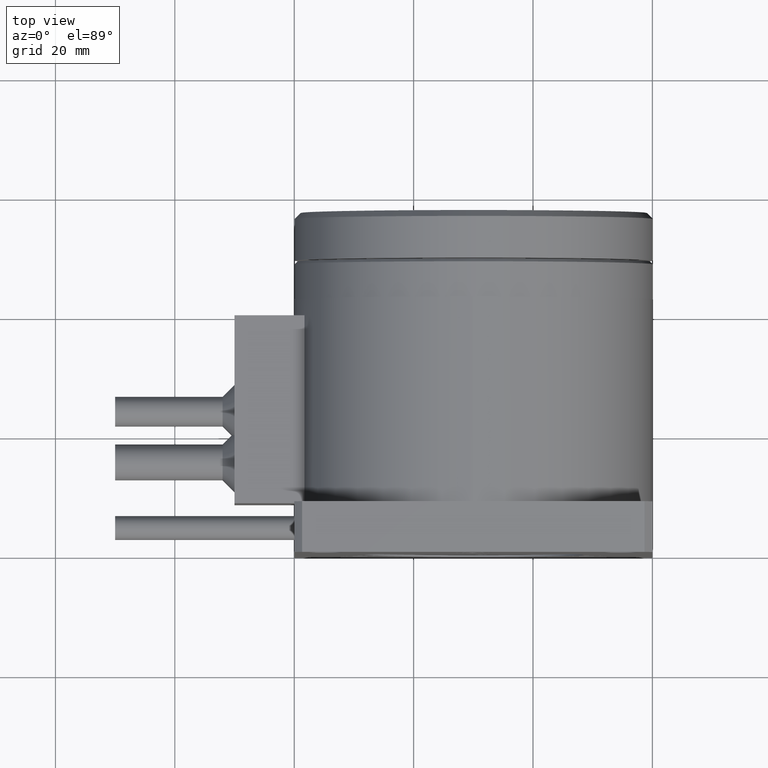
[diagram: clean part render]
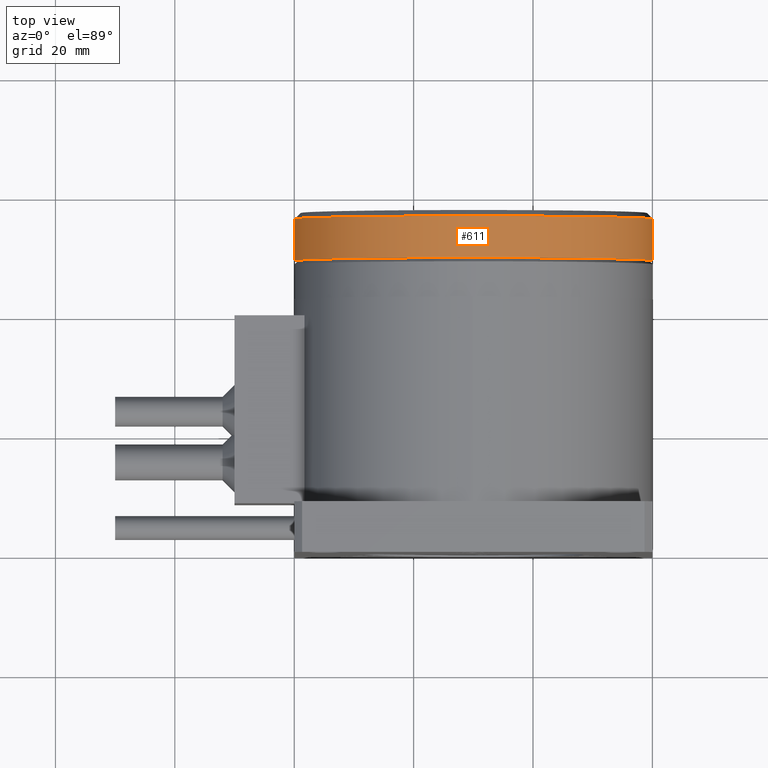
[diagram: same view with one face highlighted and labeled with its STEP entity id]
A machine part, top view. The second image highlights one B-rep face of the part: STEP entity #611.
In plain terms, the highlighted cylindrical surface (partial cylindrical patch) has radius 30 mm, axis along (0, -1, -0).
Its self-contained STEP definition (entity closure, byte-faithful):
#291 = ORIENTED_EDGE ( 'NONE', *, *, #1512, .T. ) ;
#496 = DIRECTION ( 'NONE',  ( -2.775557561562891800E-016, 1.000000000000000000, 2.773339119917620200E-032 ) ) ;
#611 = ADVANCED_FACE ( 'NONE', ( #7695 ), #9437, .T. ) ;
#968 = LINE ( 'NONE', #8223, #6198 ) ;
#1023 = CARTESIAN_POINT ( 'NONE',  ( 60.08123850349500100, 57.29547724548379500, 29.86812560160680600 ) ) ;
#1512 = EDGE_CURVE ( 'NONE', #8755, #7140, #968, .T. ) ;
#1843 = DIRECTION ( 'NONE',  ( 2.775557561562891800E-016, -1.000000000000000000, -2.773339119917620200E-032 ) ) ;
#2247 = CARTESIAN_POINT ( 'NONE',  ( 30.08123850349500800, 56.29547724548376700, 29.86812560160681300 ) ) ;
#2334 = AXIS2_PLACEMENT_3D ( 'NONE', #4202, #496, #9302 ) ;
#2643 = CARTESIAN_POINT ( 'NONE',  ( 0.08123850349501041100, 56.29547724548376000, 29.86812560160681700 ) ) ;
#3884 = DIRECTION ( 'NONE',  ( 2.775557561562891800E-016, -1.000000000000000000, -2.773339119917620200E-032 ) ) ;
#3975 = CIRCLE ( 'NONE', #7068, 29.99999999999999600 ) ;
#4025 = CARTESIAN_POINT ( 'NONE',  ( 30.08123850349500800, 57.29547724548378800, 29.86812560160681300 ) ) ;
#4202 = CARTESIAN_POINT ( 'NONE',  ( 30.08123850349501200, 49.29547724548378800, 29.86812560160681300 ) ) ;
#4503 = CARTESIAN_POINT ( 'NONE',  ( 60.08123850349500800, 49.29547724548379500, 29.86812560160680600 ) ) ;
#4631 = VECTOR ( 'NONE', #8319, 1000.000000000000000 ) ;
#4791 = VERTEX_POINT ( 'NONE', #7995 ) ;
#5011 = DIRECTION ( 'NONE',  ( 1.000000000000000000, 2.312964634635743000E-016, -1.156482317317871500E-016 ) ) ;
#5482 = EDGE_CURVE ( 'NONE', #7140, #6322, #5937, .T. ) ;
#5583 = CARTESIAN_POINT ( 'NONE',  ( 0.08123850349501388100, 49.29547724548378100, 29.86812560160681700 ) ) ;
#5660 = EDGE_CURVE ( 'NONE', #4791, #8755, #3975, .T. ) ;
#5852 = EDGE_CURVE ( 'NONE', #4791, #6322, #5907, .T. ) ;
#5877 = EDGE_LOOP ( 'NONE', ( #9393, #7973, #291, #7661 ) ) ;
#5907 = LINE ( 'NONE', #1023, #4631 ) ;
#5937 = CIRCLE ( 'NONE', #2334, 30.00000000000000000 ) ;
#6011 = AXIS2_PLACEMENT_3D ( 'NONE', #4025, #1843, #7628 ) ;
#6198 = VECTOR ( 'NONE', #3884, 1000.000000000000000 ) ;
#6322 = VERTEX_POINT ( 'NONE', #4503 ) ;
#7068 = AXIS2_PLACEMENT_3D ( 'NONE', #2247, #8715, #5011 ) ;
#7140 = VERTEX_POINT ( 'NONE', #5583 ) ;
#7628 = DIRECTION ( 'NONE',  ( -1.000000000000000000, -2.312964634635743000E-016, 1.156482317317871500E-016 ) ) ;
#7661 = ORIENTED_EDGE ( 'NONE', *, *, #5482, .T. ) ;
#7695 = FACE_OUTER_BOUND ( 'NONE', #5877, .T. ) ;
#7973 = ORIENTED_EDGE ( 'NONE', *, *, #5660, .T. ) ;
#7995 = CARTESIAN_POINT ( 'NONE',  ( 60.08123850349500800, 56.29547724548377400, 29.86812560160680600 ) ) ;
#8223 = CARTESIAN_POINT ( 'NONE',  ( 0.08123850349501041100, 57.29547724548378100, 29.86812560160681700 ) ) ;
#8319 = DIRECTION ( 'NONE',  ( 2.775557561562891800E-016, -1.000000000000000000, -2.773339119917620200E-032 ) ) ;
#8715 = DIRECTION ( 'NONE',  ( 2.775557561562891800E-016, -1.000000000000000000, -2.773339119917620200E-032 ) ) ;
#8755 = VERTEX_POINT ( 'NONE', #2643 ) ;
#9302 = DIRECTION ( 'NONE',  ( 1.000000000000000000, 2.312964634635743000E-016, -1.156482317317871500E-016 ) ) ;
#9393 = ORIENTED_EDGE ( 'NONE', *, *, #5852, .F. ) ;
#9437 = CYLINDRICAL_SURFACE ( 'NONE', #6011, 30.00000000000000000 ) ;